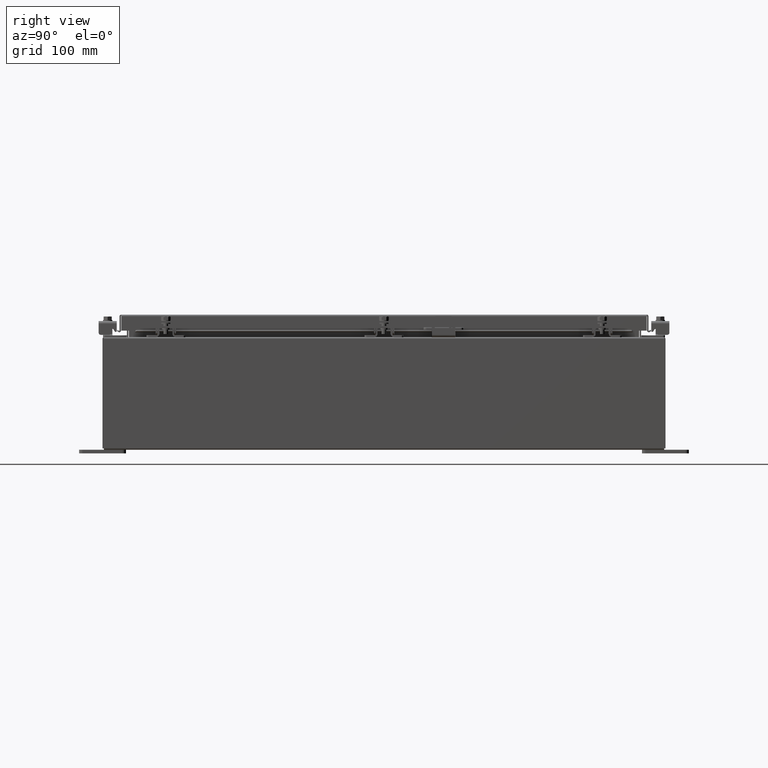
[diagram: clean part render]
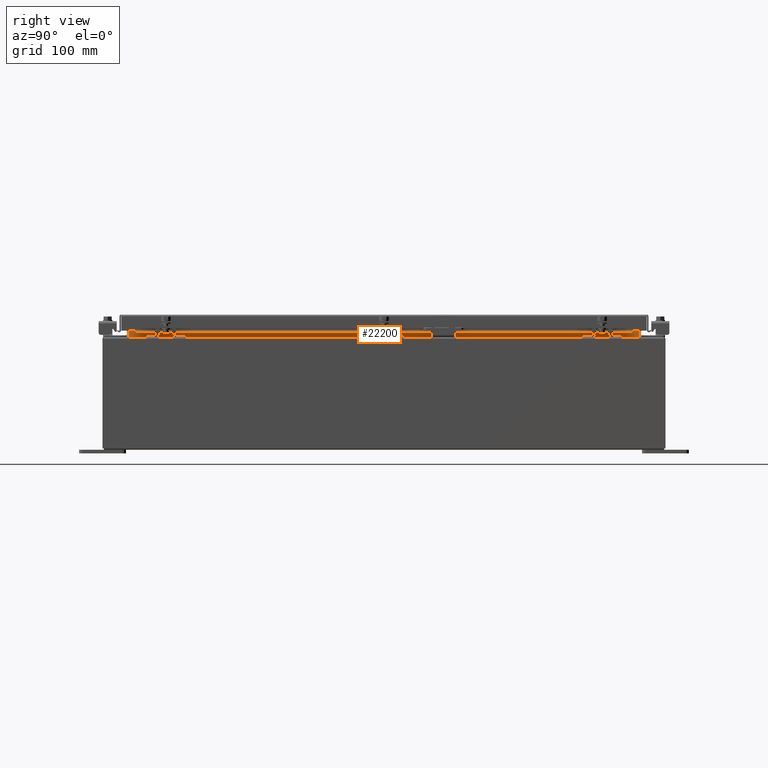
[diagram: same view with one face highlighted and labeled with its STEP entity id]
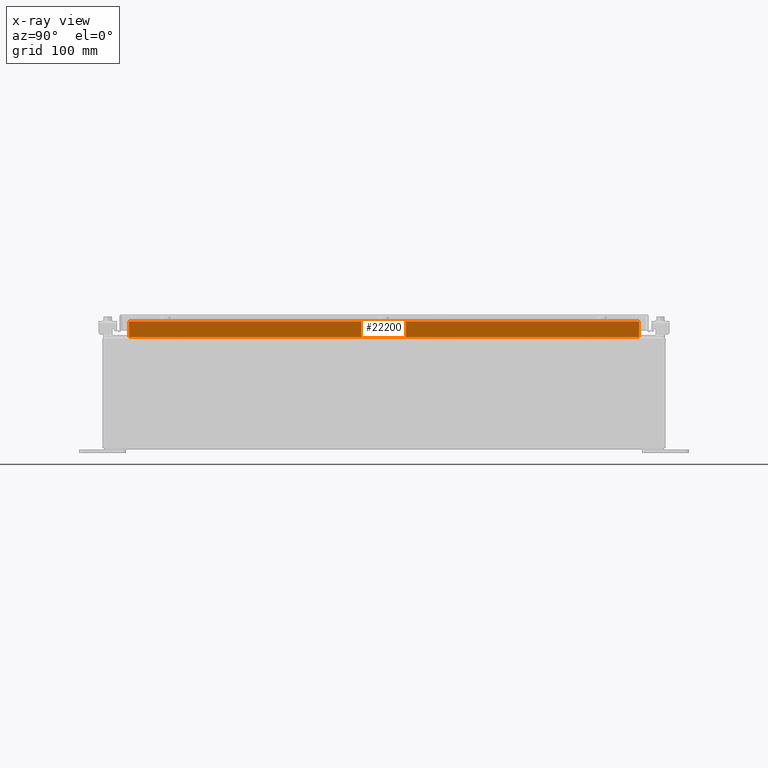
[diagram: x-ray of the same camera — body ghosted, the highlighted face saturated]
A machine part, right view. The second image highlights one B-rep face of the part: STEP entity #22200.
The next image is the same camera in x-ray: the body ghosted, the highlighted face saturated — about 0% of this face is hidden behind the body in this view.
In plain terms, the highlighted planar face has unit normal (1, 0, -0).
Its self-contained STEP definition (entity closure, byte-faithful):
#538 = CARTESIAN_POINT ( 'NONE',  ( 8.699700000000023100, -13.59374999999999800, 6.850600000000010700 ) ) ;
#1535 = ORIENTED_EDGE ( 'NONE', *, *, #21586, .F. ) ;
#3209 = CARTESIAN_POINT ( 'NONE',  ( 8.699700000000019500, 13.59375000000000700, 5.938300000000010600 ) ) ;
#5176 = LINE ( 'NONE', #22730, #35053 ) ;
#5659 = ORIENTED_EDGE ( 'NONE', *, *, #12184, .F. ) ;
#5893 = PLANE ( 'NONE',  #17512 ) ;
#6034 = DIRECTION ( 'NONE',  ( 1.000000000000000000, 0.0000000000000000000, -3.542869979895294000E-015 ) ) ;
#6251 = DIRECTION ( 'NONE',  ( 8.038541222736220000E-017, -1.000000000000000000, 1.205781183410432900E-016 ) ) ;
#6348 = DIRECTION ( 'NONE',  ( 3.542869979895302300E-015, -0.0000000000000000000, 1.000000000000000000 ) ) ;
#6662 = VERTEX_POINT ( 'NONE', #32226 ) ;
#7363 = LINE ( 'NONE', #10485, #37211 ) ;
#8800 = CARTESIAN_POINT ( 'NONE',  ( 8.699699999999998200, 0.0000000000000000000, -3.082190596409509000E-014 ) ) ;
#10136 = VERTEX_POINT ( 'NONE', #15351 ) ;
#10239 = LINE ( 'NONE', #3209, #24716 ) ;
#10485 = CARTESIAN_POINT ( 'NONE',  ( 8.699700000000021300, -13.59374999999999800, 6.762900000000009900 ) ) ;
#11151 = CARTESIAN_POINT ( 'NONE',  ( 8.699700000000023100, -13.59374999999999800, 6.762900000000009900 ) ) ;
#11520 = FACE_OUTER_BOUND ( 'NONE', #28418, .T. ) ;
#11964 = EDGE_CURVE ( 'NONE', #6662, #31461, #21357, .T. ) ;
#12106 = ORIENTED_EDGE ( 'NONE', *, *, #11964, .F. ) ;
#12184 = EDGE_CURVE ( 'NONE', #31461, #34557, #7363, .T. ) ;
#12196 = CARTESIAN_POINT ( 'NONE',  ( 8.699700000000021300, 13.59375000000000700, 6.762900000000009900 ) ) ;
#13710 = VECTOR ( 'NONE', #6348, 39.37007874015748100 ) ;
#14564 = EDGE_CURVE ( 'NONE', #10136, #6662, #10239, .T. ) ;
#15351 = CARTESIAN_POINT ( 'NONE',  ( 8.699700000000019500, 13.59375000000000900, 5.938300000000011500 ) ) ;
#17051 = DIRECTION ( 'NONE',  ( -3.542869979895294000E-015, -0.0000000000000000000, -1.000000000000000000 ) ) ;
#17512 = AXIS2_PLACEMENT_3D ( 'NONE', #8800, #6034, #26246 ) ;
#21357 = LINE ( 'NONE', #538, #13710 ) ;
#21586 = EDGE_CURVE ( 'NONE', #34557, #10136, #5176, .T. ) ;
#22200 = ADVANCED_FACE ( 'NONE', ( #11520 ), #5893, .T. ) ;
#22730 = CARTESIAN_POINT ( 'NONE',  ( 8.699700000000019500, 13.59375000000000700, 5.925300000000009800 ) ) ;
#24716 = VECTOR ( 'NONE', #6251, 39.37007874015748100 ) ;
#25259 = ORIENTED_EDGE ( 'NONE', *, *, #14564, .F. ) ;
#26246 = DIRECTION ( 'NONE',  ( -3.542869979895294000E-015, 0.0000000000000000000, -1.000000000000000000 ) ) ;
#27835 = DIRECTION ( 'NONE',  ( 0.0000000000000000000, 1.000000000000000000, 0.0000000000000000000 ) ) ;
#28418 = EDGE_LOOP ( 'NONE', ( #1535, #5659, #12106, #25259 ) ) ;
#31461 = VERTEX_POINT ( 'NONE', #11151 ) ;
#32226 = CARTESIAN_POINT ( 'NONE',  ( 8.699700000000019500, -13.59375000000000000, 5.938300000000011500 ) ) ;
#34557 = VERTEX_POINT ( 'NONE', #12196 ) ;
#35053 = VECTOR ( 'NONE', #17051, 39.37007874015748100 ) ;
#37211 = VECTOR ( 'NONE', #27835, 39.37007874015748100 ) ;